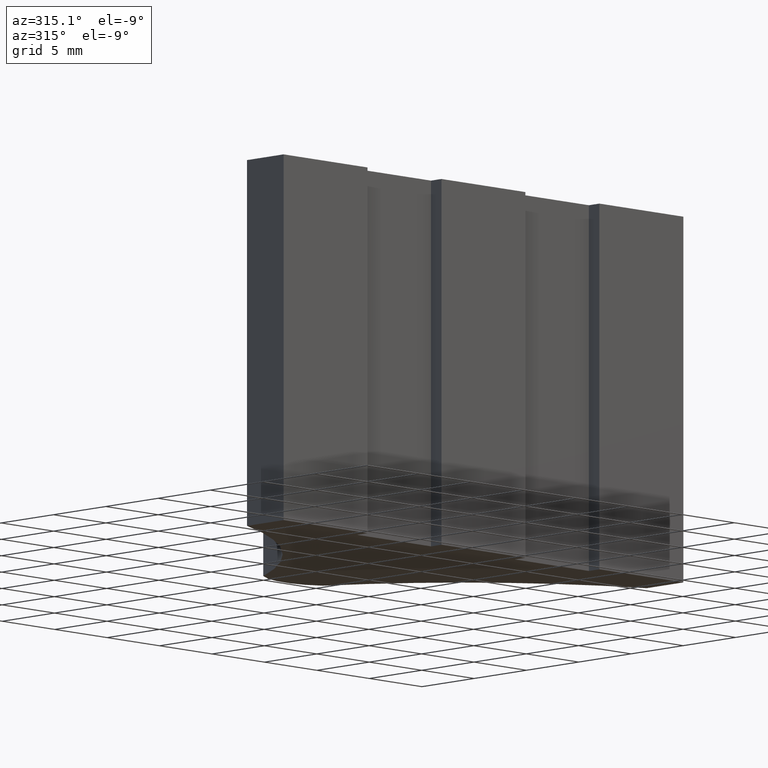
[diagram: clean part render]
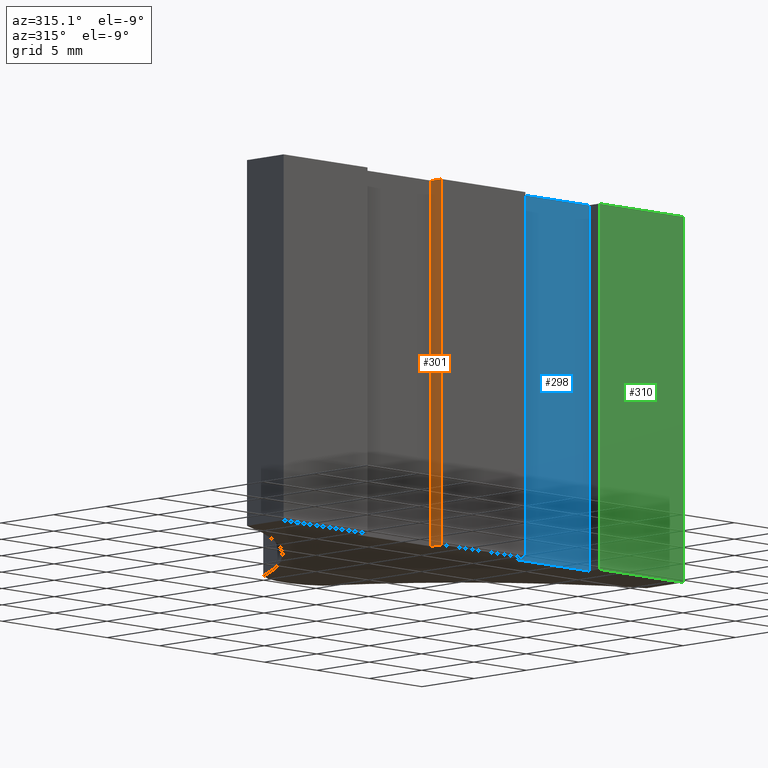
[diagram: same view with three faces highlighted in distinct colors, each labeled with its STEP entity id]
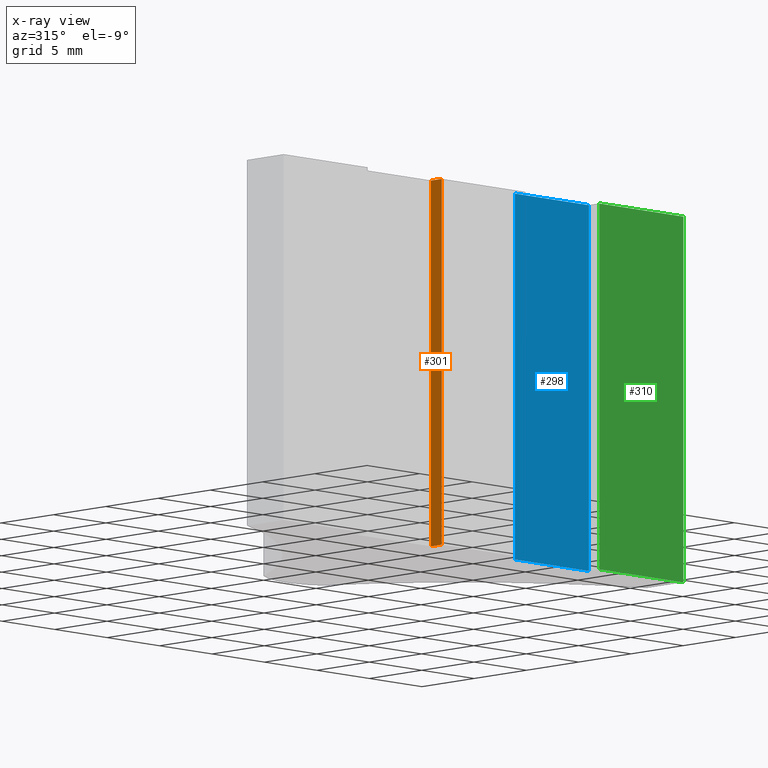
[diagram: x-ray of the same camera — body ghosted, the three highlighted faces saturated]
A machine part, auxiliary view with three faces highlighted in distinct colors.
The next image is the same camera in x-ray (body ghosted, the three faces saturated) — at least one of them is partly hidden behind the body in this view.
Their STEP definitions:

[orange] entity #301 — the highlighted planar face has unit normal (-1, 0, 0).
#24=FACE_OUTER_BOUND('',#40,.T.);
#40=EDGE_LOOP('',(#229,#230,#231,#232));
#63=LINE('',#455,#99);
#76=LINE('',#486,#112);
#77=LINE('',#489,#113);
#78=LINE('',#490,#114);
#99=VECTOR('',#367,10.);
#112=VECTOR('',#394,10.);
#113=VECTOR('',#397,10.);
#114=VECTOR('',#398,10.);
#135=VERTEX_POINT('',#452);
#136=VERTEX_POINT('',#454);
#147=VERTEX_POINT('',#484);
#148=VERTEX_POINT('',#488);
#163=EDGE_CURVE('',#136,#135,#63,.T.);
#179=EDGE_CURVE('',#147,#135,#76,.T.);
#180=EDGE_CURVE('',#147,#148,#77,.T.);
#181=EDGE_CURVE('',#148,#136,#78,.T.);
#229=ORIENTED_EDGE('',*,*,#180,.T.);
#230=ORIENTED_EDGE('',*,*,#181,.T.);
#231=ORIENTED_EDGE('',*,*,#163,.T.);
#232=ORIENTED_EDGE('',*,*,#179,.F.);
#288=PLANE('',#343);
#301=ADVANCED_FACE('',(#24),#288,.T.);
#343=AXIS2_PLACEMENT_3D('',#487,#395,#396);
#367=DIRECTION('',(0.,-1.,0.));
#394=DIRECTION('',(0.,0.,-1.));
#395=DIRECTION('center_axis',(-1.,0.,0.));
#396=DIRECTION('ref_axis',(0.,0.,1.));
#397=DIRECTION('',(0.,1.,0.));
#398=DIRECTION('',(0.,0.,-1.));
#452=CARTESIAN_POINT('',(-4.,-0.999999999999995,-12.5));
#454=CARTESIAN_POINT('',(-4.,6.07153216591882E-16,-12.5));
#455=CARTESIAN_POINT('',(-4.,-0.999999999999995,-12.5));
#484=CARTESIAN_POINT('',(-4.,-0.999999999999995,12.5));
#486=CARTESIAN_POINT('',(-4.,-0.999999999999995,0.));
#487=CARTESIAN_POINT('Origin',(-4.,-0.999999999999995,0.));
#488=CARTESIAN_POINT('',(-4.,6.07153216591882E-16,12.5));
#489=CARTESIAN_POINT('',(-4.,-0.999999999999995,12.5));
#490=CARTESIAN_POINT('',(-4.,6.07153216591882E-16,0.));

[blue] entity #298 — the highlighted planar face has unit normal (-0, -1, 0).
#21=FACE_OUTER_BOUND('',#37,.T.);
#37=EDGE_LOOP('',(#217,#218,#219,#220));
#60=LINE('',#449,#96);
#69=LINE('',#473,#105);
#71=LINE('',#477,#107);
#72=LINE('',#478,#108);
#96=VECTOR('',#364,10.);
#105=VECTOR('',#381,10.);
#107=VECTOR('',#385,10.);
#108=VECTOR('',#386,10.);
#132=VERTEX_POINT('',#446);
#133=VERTEX_POINT('',#448);
#144=VERTEX_POINT('',#471);
#145=VERTEX_POINT('',#476);
#160=EDGE_CURVE('',#133,#132,#60,.T.);
#172=EDGE_CURVE('',#144,#132,#69,.T.);
#174=EDGE_CURVE('',#144,#145,#71,.T.);
#175=EDGE_CURVE('',#145,#133,#72,.T.);
#217=ORIENTED_EDGE('',*,*,#174,.T.);
#218=ORIENTED_EDGE('',*,*,#175,.T.);
#219=ORIENTED_EDGE('',*,*,#160,.T.);
#220=ORIENTED_EDGE('',*,*,#172,.F.);
#285=PLANE('',#340);
#298=ADVANCED_FACE('',(#21),#285,.T.);
#340=AXIS2_PLACEMENT_3D('',#475,#383,#384);
#364=DIRECTION('',(1.,-8.61210236300542E-17,0.));
#381=DIRECTION('',(0.,0.,-1.));
#383=DIRECTION('center_axis',(-8.61210236300542E-17,-1.,0.));
#384=DIRECTION('ref_axis',(0.,0.,-1.));
#385=DIRECTION('',(-1.,8.61210236300542E-17,0.));
#386=DIRECTION('',(0.,0.,-1.));
#446=CARTESIAN_POINT('',(11.05,0.,-12.5));
#448=CARTESIAN_POINT('',(4.,6.07153216591882E-16,-12.5));
#449=CARTESIAN_POINT('',(11.05,0.,-12.5));
#471=CARTESIAN_POINT('',(11.05,0.,12.5));
#473=CARTESIAN_POINT('',(11.05,0.,0.));
#475=CARTESIAN_POINT('Origin',(11.05,0.,0.));
#476=CARTESIAN_POINT('',(4.,6.07153216591882E-16,12.5));
#477=CARTESIAN_POINT('',(11.05,0.,12.5));
#478=CARTESIAN_POINT('',(4.,6.07153216591882E-16,0.));

[green] entity #310 — the highlighted planar face has unit normal (0, -1, 0).
#33=FACE_OUTER_BOUND('',#49,.T.);
#49=EDGE_LOOP('',(#265,#266,#267,#268));
#58=LINE('',#445,#94);
#70=LINE('',#474,#106);
#91=LINE('',#522,#127);
#92=LINE('',#524,#128);
#94=VECTOR('',#362,10.);
#106=VECTOR('',#382,10.);
#127=VECTOR('',#433,10.);
#128=VECTOR('',#436,10.);
#129=VERTEX_POINT('',#441);
#131=VERTEX_POINT('',#444);
#143=VERTEX_POINT('',#470);
#156=VERTEX_POINT('',#520);
#158=EDGE_CURVE('',#131,#129,#58,.T.);
#173=EDGE_CURVE('',#143,#131,#70,.T.);
#197=EDGE_CURVE('',#129,#156,#91,.T.);
#198=EDGE_CURVE('',#156,#143,#92,.T.);
#265=ORIENTED_EDGE('',*,*,#198,.T.);
#266=ORIENTED_EDGE('',*,*,#173,.T.);
#267=ORIENTED_EDGE('',*,*,#158,.T.);
#268=ORIENTED_EDGE('',*,*,#197,.T.);
#294=PLANE('',#355);
#310=ADVANCED_FACE('',(#33),#294,.T.);
#355=AXIS2_PLACEMENT_3D('',#523,#434,#435);
#362=DIRECTION('',(1.,0.,0.));
#382=DIRECTION('',(0.,0.,-1.));
#433=DIRECTION('',(0.,0.,1.));
#434=DIRECTION('center_axis',(0.,-1.,0.));
#435=DIRECTION('ref_axis',(0.,0.,-1.));
#436=DIRECTION('',(-1.,0.,0.));
#441=CARTESIAN_POINT('',(19.05,-1.,-12.5));
#444=CARTESIAN_POINT('',(11.05,-1.,-12.5));
#445=CARTESIAN_POINT('',(19.05,-1.,-12.5));
#470=CARTESIAN_POINT('',(11.05,-1.,12.5));
#474=CARTESIAN_POINT('',(11.05,-1.,0.));
#520=CARTESIAN_POINT('',(19.05,-1.,12.5));
#522=CARTESIAN_POINT('',(19.05,-1.,0.));
#523=CARTESIAN_POINT('Origin',(19.05,-1.,0.));
#524=CARTESIAN_POINT('',(19.05,-1.,12.5));